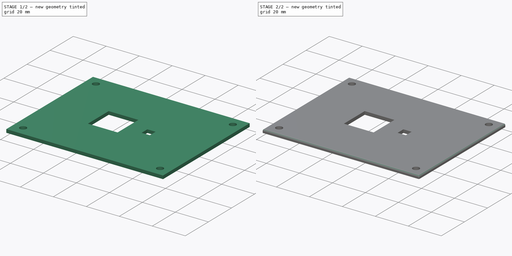
[diagram: build sequence overview — one tinted view per stage of 2, left to right]
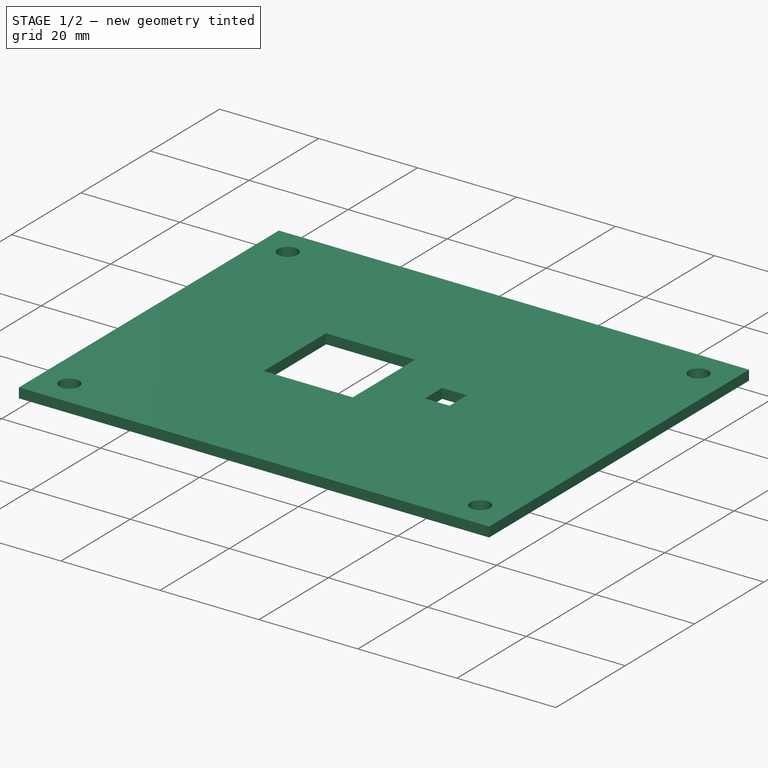
[diagram: stage 1 of 2 — iso view after this stage's code; geometry added in this stage tinted green]
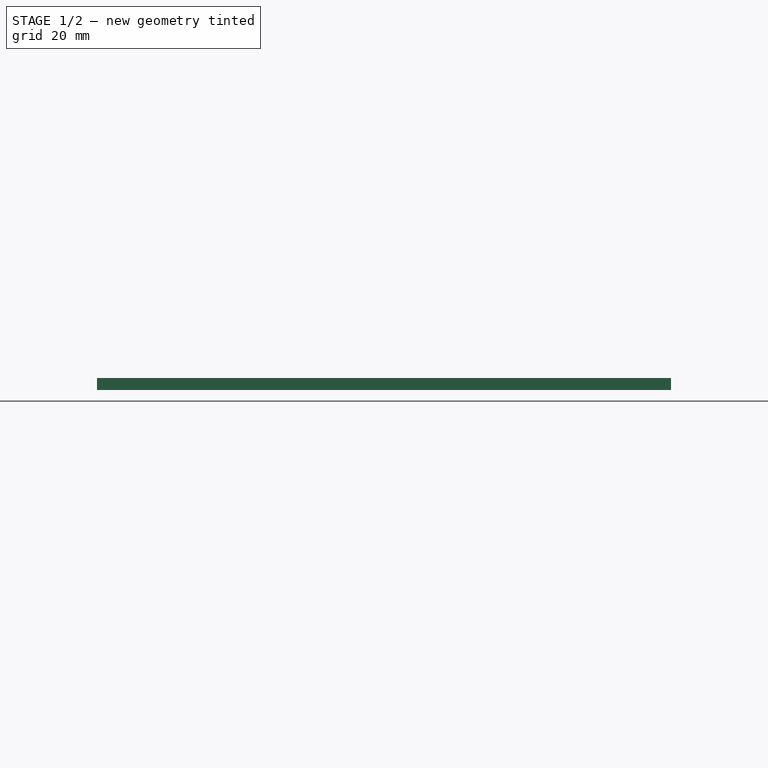
[diagram: stage 1 of 2 — front view after this stage's code; geometry added in this stage tinted green]
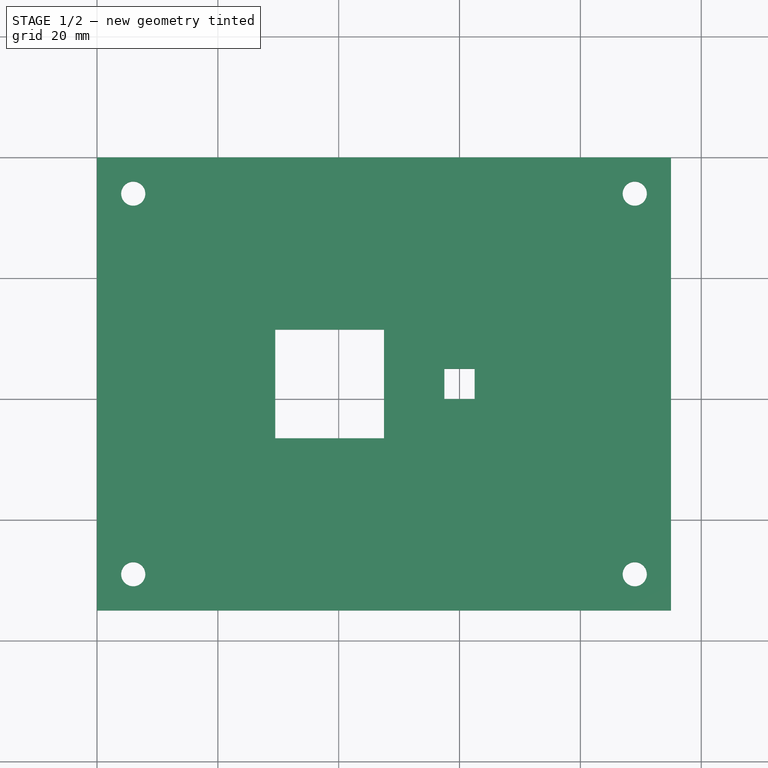
[diagram: stage 1 of 2 — top view after this stage's code; geometry added in this stage tinted green]
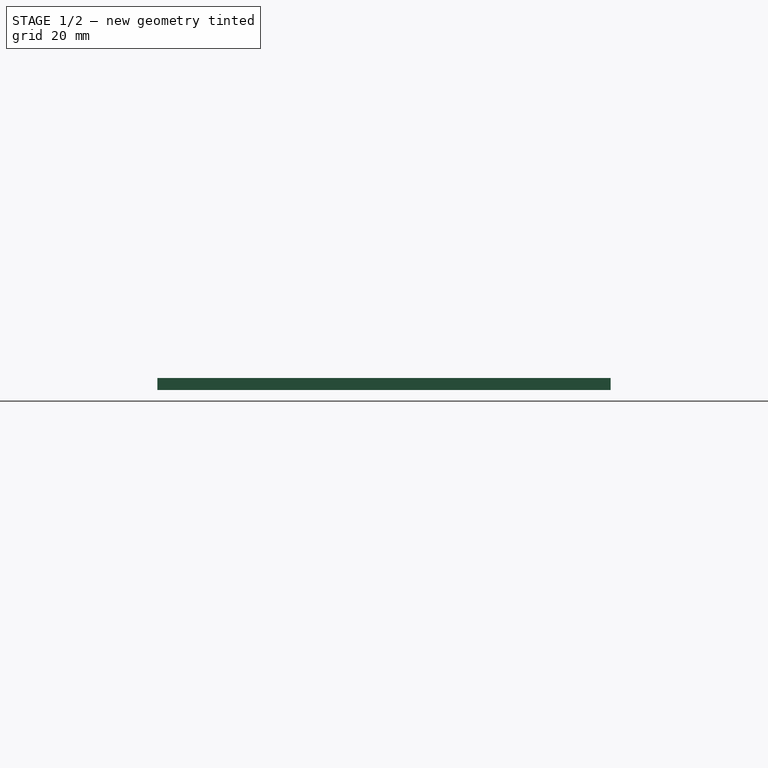
[diagram: stage 1 of 2 — right view after this stage's code; geometry added in this stage tinted green]
FCSTD DOCUMENT  (FreeCAD 0.18R16146 (Git))
Label: top
License: All rights reserved
LicenseURL: http://en.wikipedia.org/wiki/All_rights_reserved
objects: Sketcher::SketchObject×2, Part::Fillet×2, PartDesign::Pad×1, PartDesign::Pocket×1, PartDesign::Body×1
note: 9 computed .brp shape members not serialized (recipe doc carries the construction recipe); baked Part::Feature solids carry a one-line shape summary decoded from their .brp

FEATURE [Sketcher::SketchObject] Sketch
  MapMode = 5
  Support = -> [XY_Plane]
  sketch-geometry (4):
    g0: LineSegment StartX=0 StartY=0 StartZ=0 EndX=95 EndY=0 EndZ=0
    g1: LineSegment StartX=95 StartY=0 StartZ=0 EndX=95 EndY=-75 EndZ=0
    g2: LineSegment StartX=95 StartY=-75 StartZ=0 EndX=0 EndY=-75 EndZ=0
    g3: LineSegment StartX=0 StartY=-75 StartZ=0 EndX=0 EndY=0 EndZ=0
  constraints (11):
    c: Coincident(g0,g1)
    c: Coincident(g1,g2)
    c: Coincident(g2,g3)
    c: Coincident(g3,g0)
    c: Horizontal(g0)
    c: Horizontal(g2)
    c: Vertical(g1)
    c: Vertical(g3)
    c: DistanceX(g0,g0) = 95
    c: DistanceY(g1,g1) = 75
    c: Coincident(g0,g-1)
FEATURE [PartDesign::Pad] Pad
  Length = 2
  Length2 = 100
  Profile = -> Sketch
  Type = 0
FEATURE [Sketcher::SketchObject] Sketch001
  ExternalGeometry = -> [Sketch]
  MapMode = 5
  Placement = pos=(0,0,2) rot=(0,0,1;0rad)
  Support = -> [Pad]
  sketch-geometry (14):
    g0: Circle CenterX=6 CenterY=-6 CenterZ=0 NormalX=0 NormalY=0 NormalZ=1 AngleXU=0 Radius=2
    g1: Circle CenterX=89 CenterY=-6 CenterZ=0 NormalX=0 NormalY=0 NormalZ=1 AngleXU=0 Radius=2
    g2: Circle CenterX=6 CenterY=-69 CenterZ=0 NormalX=0 NormalY=0 NormalZ=1 AngleXU=0 Radius=2
    g3: Circle CenterX=89 CenterY=-69 CenterZ=0 NormalX=0 NormalY=0 NormalZ=1 AngleXU=0 Radius=2
    g4: LineSegment [constr] StartX=47.5 StartY=0 StartZ=0 EndX=47.5 EndY=-75 EndZ=0
    g5: LineSegment [constr] StartX=0 StartY=-37.5 StartZ=0 EndX=95 EndY=-37.5 EndZ=0
    g6: LineSegment StartX=47.5 StartY=-28.5 StartZ=0 EndX=29.5 EndY=-28.5 EndZ=0
    g7: LineSegment StartX=29.5 StartY=-28.5 StartZ=0 EndX=29.5 EndY=-46.5 EndZ=0
    g8: LineSegment StartX=29.5 StartY=-46.5 StartZ=0 EndX=47.5 EndY=-46.5 EndZ=0
    g9: LineSegment StartX=47.5 StartY=-46.5 StartZ=0 EndX=47.5 EndY=-28.5 EndZ=0
    g10: LineSegment StartX=62.5 StartY=-35 StartZ=0 EndX=57.5 EndY=-35 EndZ=0
    g11: LineSegment StartX=57.5 StartY=-35 StartZ=0 EndX=57.5 EndY=-40 EndZ=0
    g12: LineSegment StartX=57.5 StartY=-40 StartZ=0 EndX=62.5 EndY=-40 EndZ=0
    g13: LineSegment StartX=62.5 StartY=-40 StartZ=0 EndX=62.5 EndY=-35 EndZ=0
  constraints (38):
    c: Radius(g0) = 2
    c: DistanceY(g0,g-1) = 6
    c: DistanceX(g-1,g0) = 6
    c: Radius(g1) = 2
    c: Radius(g2) = 2
    c: Radius(g3) = 2
    c: DistanceX(g-6,g2) = 6
    c: DistanceY(g-6,g2) = 6
    c: DistanceX(g3,g-5) = 6
    c: DistanceY(g-5,g3) = 6
    c: DistanceX(g1,g-4) = 6
    c: DistanceY(g1,g-4) = 6
    c: Symmetric(g-1,g-4,g4)
    c: Symmetric(g-6,g-5,g4)
    c: Symmetric(g-1,g-6,g5)
    c: Symmetric(g-4,g-5,g5)
    c: Coincident(g6,g7)
    c: Coincident(g7,g8)
    c: Coincident(g8,g9)
    c: Coincident(g9,g6)
    c: Horizontal(g6)
    c: Coincident(g10,g11)
    c: Coincident(g11,g12)
    c: Coincident(g12,g13)
    c: Coincident(g13,g10)
    c: Horizontal(g10)
    c: Equal(g6,g8)
    c: Equal(g7,g9)
    c: Equal(g10,g12)
    c: Equal(g11,g13)
    c: DistanceX(g10,g10) = 5
    c: DistanceY(g13,g13) = 5
    c: DistanceX(g6,g6) = 18
    c: DistanceY(g7,g7) = 18
    c: PointOnObject(g6,g4)
    c: Symmetric(g6,g8,g5)
    c: Symmetric(g10,g11,g5)
    c: DistanceX(g6,g10) = 10
FEATURE [PartDesign::Pocket] Pocket
  BaseFeature = -> Pad
  Length = 5
  Length2 = 100
  Profile = -> Sketch001
  Type = 1
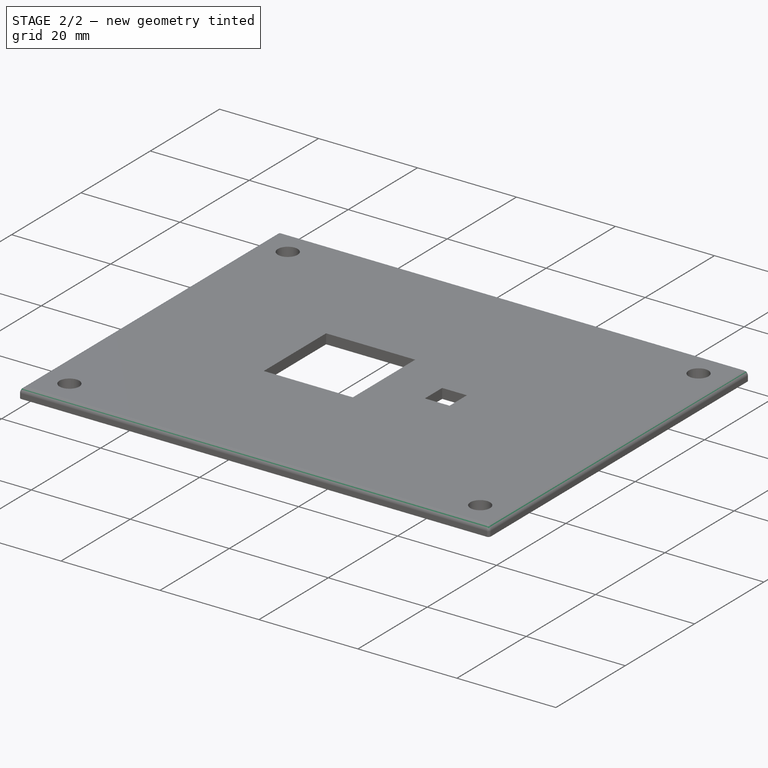
[diagram: stage 2 of 2 — iso view after this stage's code; geometry added in this stage tinted green]
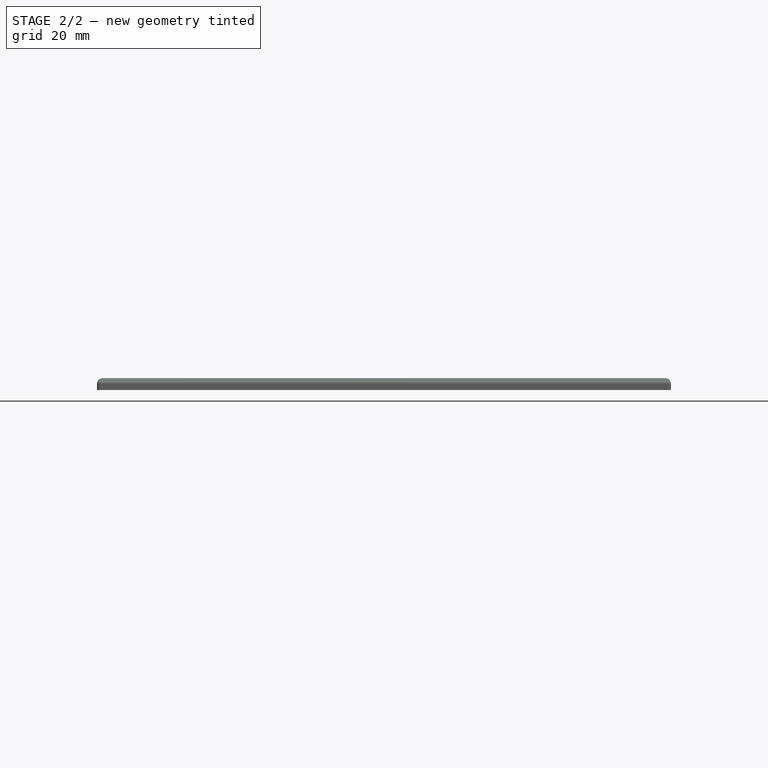
[diagram: stage 2 of 2 — front view after this stage's code; geometry added in this stage tinted green]
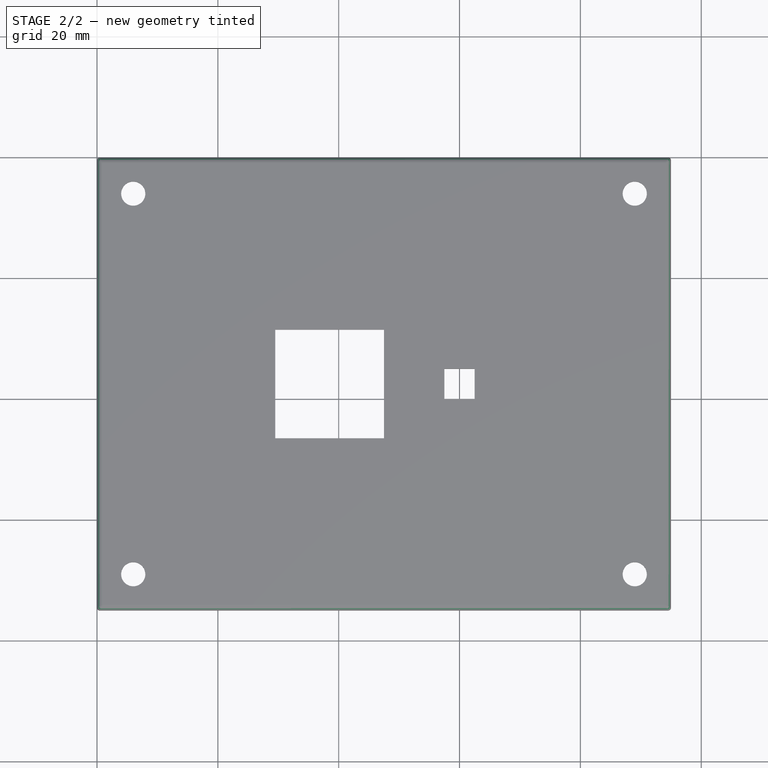
[diagram: stage 2 of 2 — top view after this stage's code; geometry added in this stage tinted green]
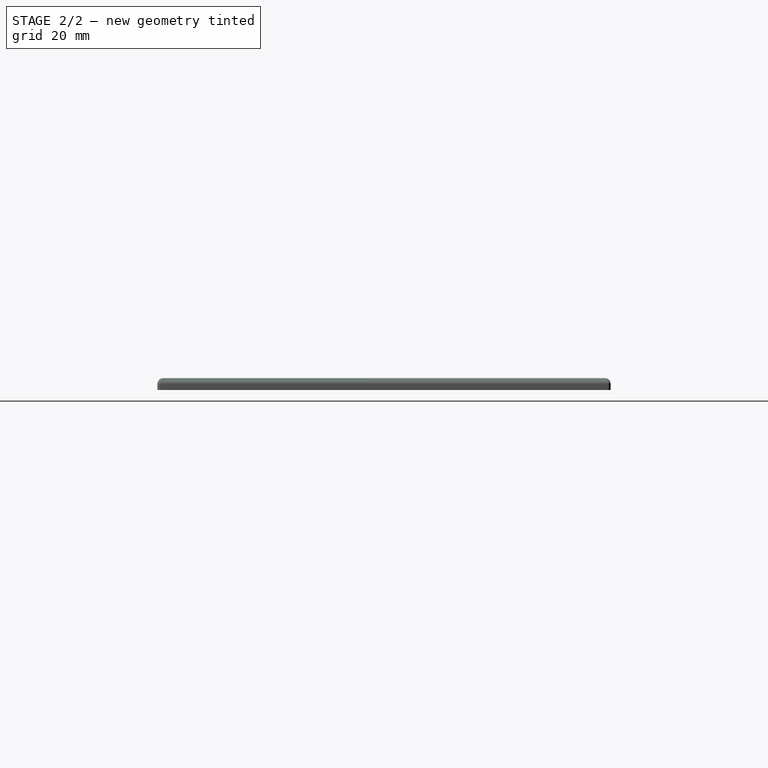
[diagram: stage 2 of 2 — right view after this stage's code; geometry added in this stage tinted green]
FEATURE [PartDesign::Body] Body
  Group = -> [Sketch,Pad,Sketch001,Pocket]
  Origin = -> Origin
  Tip = -> Pocket
FEATURE [Part::Fillet] Fillet
  Base = -> Pocket
  Edges = 4 edges r=1: [Edge4,Edge7,Edge10,Edge24]
FEATURE [Part::Fillet] Fillet001
  Base = -> Fillet
  Edges = 4 edges r=0.5: [Edge1,Edge4,Edge5,Edge26]
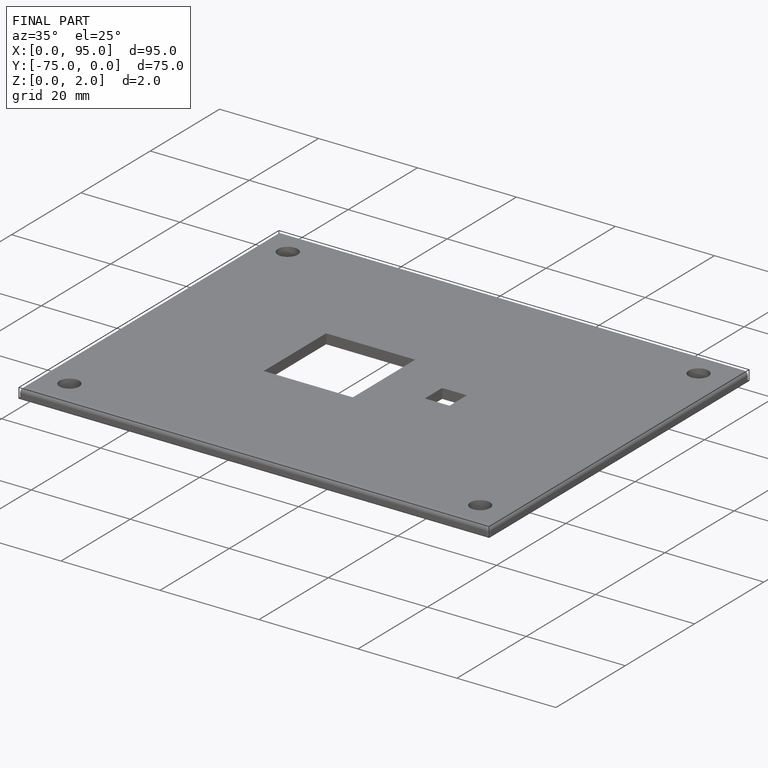
[diagram: finished part — iso view with bounding-box wireframe]
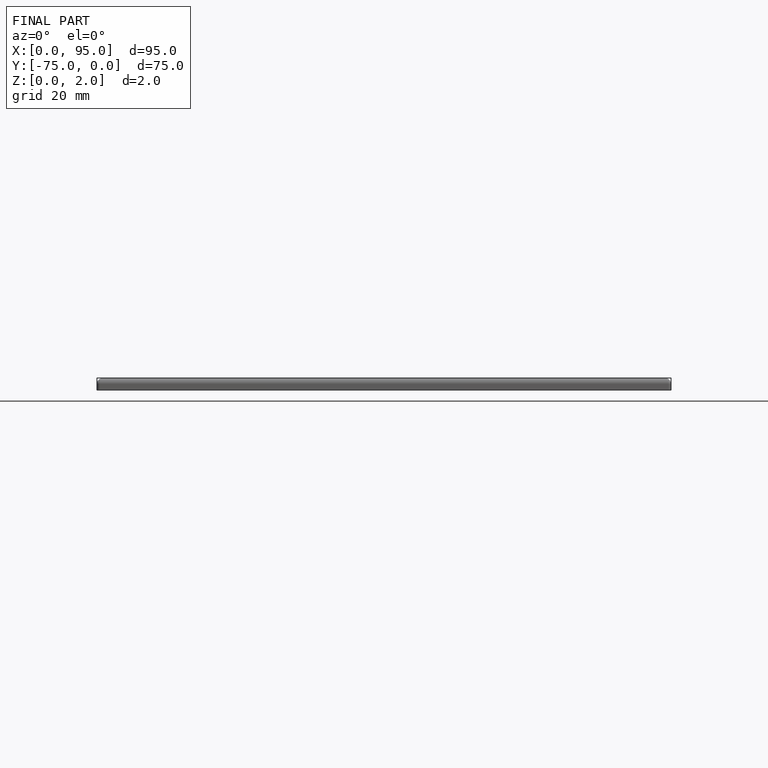
[diagram: finished part — front view with bounding-box wireframe]
